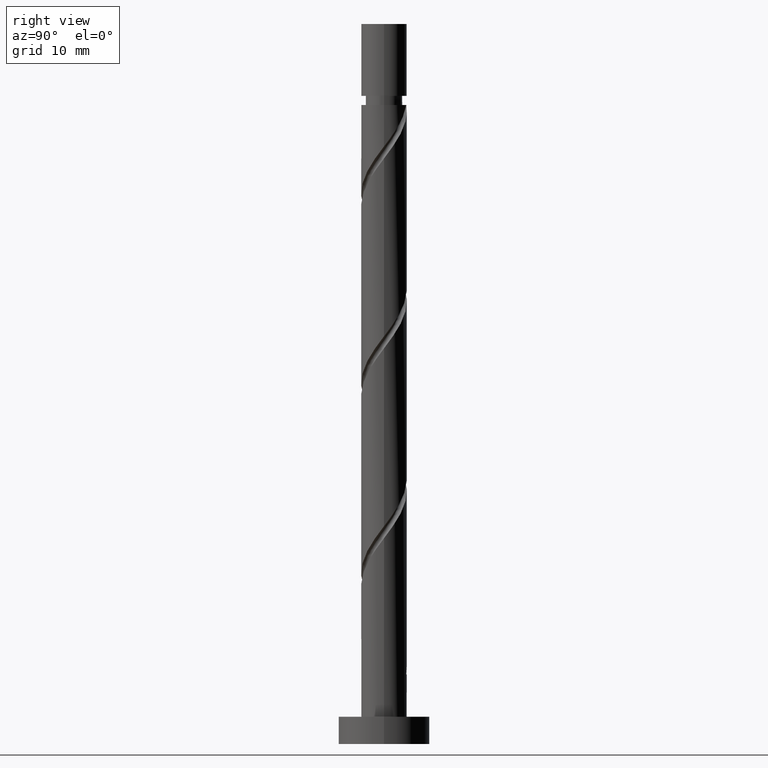
[diagram: clean part render]
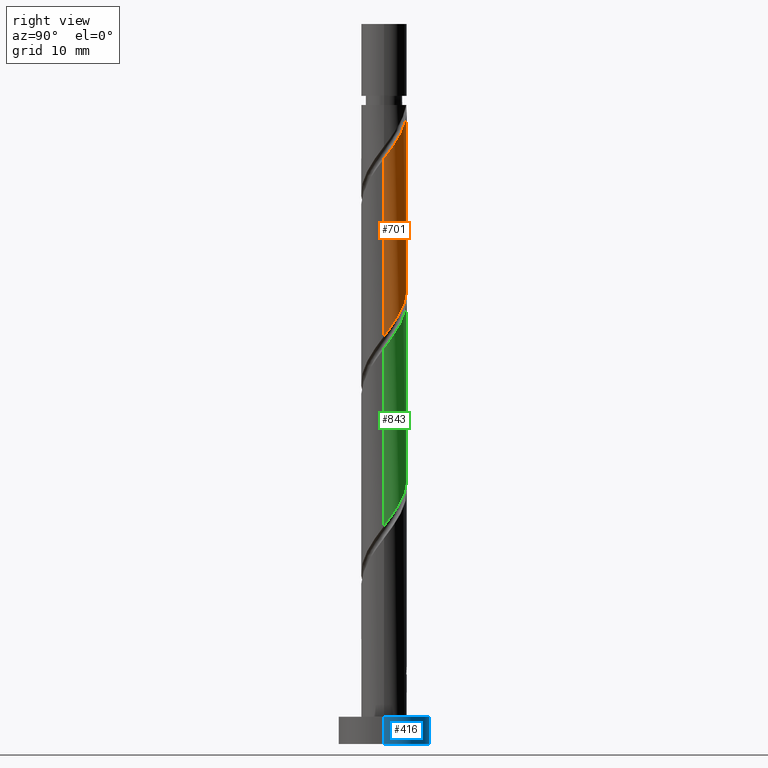
[diagram: same view with three faces highlighted in distinct colors, each labeled with its STEP entity id]
A machine part, right view with three faces highlighted in distinct colors.
Their STEP definitions:

[orange] entity #701 — the highlighted cylindrical surface (edge-blend (fillet) strip) has radius 2.5 mm, axis along (-0, -0, -1).
#4 = DIRECTION ( 'NONE',  ( -0.000000000000000000, -0.000000000000000000, -1.000000000000000000 ) ) ;
#34 = CARTESIAN_POINT ( 'NONE',  ( 2.450000000000004619, 0.4974937185533087614, 64.90624499621237931 ) ) ;
#45 = EDGE_CURVE ( 'NONE', #703, #78, #1336, .T. ) ;
#78 = VERTEX_POINT ( 'NONE', #1328 ) ;
#83 = CARTESIAN_POINT ( 'NONE',  ( -2.500000000000000444, 3.898206723633544695E-16, 55.15438077101598680 ) ) ;
#94 = DIRECTION ( 'NONE',  ( -0.000000000000000000, -0.000000000000000000, -1.000000000000000000 ) ) ;
#106 = ORIENTED_EDGE ( 'NONE', *, *, #45, .T. ) ;
#123 = DIRECTION ( 'NONE',  ( -0.000000000000000000, -0.000000000000000000, -1.000000000000000000 ) ) ;
#145 = CARTESIAN_POINT ( 'NONE',  ( 2.500000000000003997, -6.147172141114393691E-16, 64.24144255474212173 ) ) ;
#167 = CARTESIAN_POINT ( 'NONE',  ( 1.397840163920919254, 2.110172521261066247, 67.51041166287905071 ) ) ;
#192 = CARTESIAN_POINT ( 'NONE',  ( -2.176354451295367198, 1.230236279064652605, 53.44791166287905781 ) ) ;
#196 = VERTEX_POINT ( 'NONE', #1227 ) ;
#201 = CARTESIAN_POINT ( 'NONE',  ( 1.230236279064653049, 2.176354451295366310, 48.23957832954571501 ) ) ;
#227 = ORIENTED_EDGE ( 'NONE', *, *, #414, .F. ) ;
#244 = EDGE_CURVE ( 'NONE', #196, #78, #1095, .T. ) ;
#339 = CARTESIAN_POINT ( 'NONE',  ( 2.499999999999999556, 0.1424343436160815379, 44.92722519355658761 ) ) ;
#341 = EDGE_CURVE ( 'NONE', #196, #716, #1044, .T. ) ;
#414 = EDGE_CURVE ( 'NONE', #1063, #716, #984, .T. ) ;
#427 = CARTESIAN_POINT ( 'NONE',  ( 1.842554741020974163, 1.689672165344843657, 47.19791166287904360 ) ) ;
#443 = CARTESIAN_POINT ( 'NONE',  ( 0.8855355973484232424, 2.371204735821961673, 48.76041166287905781 ) ) ;
#446 = EDGE_LOOP ( 'NONE', ( #1290, #596, #227, #1271, #106 ) ) ;
#498 = FACE_OUTER_BOUND ( 'NONE', #446, .T. ) ;
#522 = VECTOR ( 'NONE', #4, 1000.000000000000000 ) ;
#556 = EDGE_CURVE ( 'NONE', #703, #1063, #607, .T. ) ;
#557 = CARTESIAN_POINT ( 'NONE',  ( 0.1094518397581949187, 2.528795264178037350, 49.80207832954572922 ) ) ;
#572 = CARTESIAN_POINT ( 'NONE',  ( -2.500000000000000000, 0.2512594538147992496, 54.82007619560815215 ) ) ;
#596 = ORIENTED_EDGE ( 'NONE', *, *, #341, .T. ) ;
#599 = CARTESIAN_POINT ( 'NONE',  ( -2.500000000000002665, 0.000000000000000000, 70.11457832954572211 ) ) ;
#607 = LINE ( 'NONE', #1092, #522 ) ;
#667 = CARTESIAN_POINT ( 'NONE',  ( -2.371204735821962561, 0.8855355973484230203, 53.96874499621238641 ) ) ;
#674 = CARTESIAN_POINT ( 'NONE',  ( -1.689672165344844101, 1.842554741020973719, 52.40624499621237931 ) ) ;
#683 = CARTESIAN_POINT ( 'NONE',  ( -0.6773458265033740489, 2.438849692923733326, 50.84374499621238641 ) ) ;
#701 = ADVANCED_FACE ( 'NONE', ( #498 ), #1318, .T. ) ;
#703 = VERTEX_POINT ( 'NONE', #599 ) ;
#716 = VERTEX_POINT ( 'NONE', #981 ) ;
#721 = DIRECTION ( 'NONE',  ( -1.000000000000000000, 0.000000000000000000, 0.000000000000000000 ) ) ;
#765 = CARTESIAN_POINT ( 'NONE',  ( 1.037592995212147873, 2.274511107092401119, 68.03124499621235088 ) ) ;
#806 = CARTESIAN_POINT ( 'NONE',  ( -1.037592995212145430, 2.274511107092398010, 51.36457832954571501 ) ) ;
#822 = CARTESIAN_POINT ( 'NONE',  ( 2.110172521261064027, 1.397840163920916146, 46.67707832954571501 ) ) ;
#865 = DIRECTION ( 'NONE',  ( -0.000000000000000000, -0.000000000000000000, -1.000000000000000000 ) ) ;
#935 = CARTESIAN_POINT ( 'NONE',  ( -1.397840163920916368, 2.110172521261063583, 51.88541166287905071 ) ) ;
#981 = CARTESIAN_POINT ( 'NONE',  ( 2.499999999999999112, -2.009075772949596157E-15, 44.73771410434930829 ) ) ;
#984 =( BOUNDED_CURVE ( )  B_SPLINE_CURVE ( 2, ( #83, #572, #1284, #667, #192, #1538, #674, #935, #806, #683, #1157, #557, #1516, #443, #201, #1429, #427, #822, #1165, #1037, #1522, #339, #1173 ),
 .UNSPECIFIED., .F., .T. ) 
 B_SPLINE_CURVE_WITH_KNOTS ( ( 3, 2, 2, 2, 2, 2, 2, 2, 2, 2, 2, 3 ),
 ( 0.4295322023138550827, 0.4375000000000000000, 0.4500000000000000111, 0.4625000000000000222, 0.4749999999999999778, 0.4874999999999999889, 0.5000000000000000000, 0.5124999999999999556, 0.5250000000000000222, 0.5374999999999999778, 0.5500000000000000444, 0.5545322023138552492 ),
 .UNSPECIFIED. ) 
 CURVE ( )  GEOMETRIC_REPRESENTATION_ITEM ( )  RATIONAL_B_SPLINE_CURVE ( ( 0.9039174447099268539, 0.9019565955404560409, 0.9090909090909043977, 0.8978984914501206838, 0.9090909090909043977, 0.8978984914501206838, 0.9090909090909043977, 0.8978984914501206838, 0.9090909090909043977, 0.8978984914501206838, 0.9090909090909043977, 0.8978984914501206838, 0.9090909090909043977, 0.8978984914501206838, 0.9090909090909043977, 0.8978984914501206838, 0.9090909090909043977, 0.8978984914501206838, 0.9090909090909043977, 0.8978984914501206838, 0.9090909090909043977, 0.9050328050005689295, 0.9039174447099267429 ) ) 
 REPRESENTATION_ITEM ( '' )  );
#1037 = CARTESIAN_POINT ( 'NONE',  ( 2.438849692923734658, 0.6773458265033740489, 45.63541166287905071 ) ) ;
#1044 = LINE ( 'NONE', #1529, #1563 ) ;
#1063 = VERTEX_POINT ( 'NONE', #1172 ) ;
#1086 = DIRECTION ( 'NONE',  ( -1.000000000000000000, 0.000000000000000000, 0.000000000000000000 ) ) ;
#1088 = CARTESIAN_POINT ( 'NONE',  ( 0.000000000000000000, 0.000000000000000000, 70.11457832954572211 ) ) ;
#1092 = CARTESIAN_POINT ( 'NONE',  ( -2.500000000000000000, 0.000000000000000000, 79.00000000000000000 ) ) ;
#1095 =( BOUNDED_CURVE ( )  B_SPLINE_CURVE ( 2, ( #145, #1373, #34, #1109, #1351, #1367, #1250, #167, #765, #1358, #1132, #1243, #1236 ),
 .UNSPECIFIED., .F., .T. ) 
 B_SPLINE_CURVE_WITH_KNOTS ( ( 3, 2, 2, 2, 2, 2, 3 ),
 ( 0.6795322023138552492, 0.6875000000000000000, 0.6999999999999999556, 0.7125000000000000222, 0.7249999999999999778, 0.7375000000000000444, 0.7500000000000000000 ),
 .UNSPECIFIED. ) 
 CURVE ( )  GEOMETRIC_REPRESENTATION_ITEM ( )  RATIONAL_B_SPLINE_CURVE ( ( 0.9039174447099327381, 0.9019565955404621471, 0.9090909090909106149, 0.8978984914501265679, 0.9090909090909106149, 0.8978984914501265679, 0.9090909090909106149, 0.8978984914501265679, 0.9090909090909106149, 0.8978984914501265679, 0.9090909090909106149, 0.8978984914501265679, 0.9090909090909106149 ) ) 
 REPRESENTATION_ITEM ( '' )  );
#1109 = CARTESIAN_POINT ( 'NONE',  ( 2.371204735821966114, 0.8855355973484234644, 65.42707832954573632 ) ) ;
#1132 = CARTESIAN_POINT ( 'NONE',  ( 0.2839469933725912165, 2.483822478550889556, 69.07291166287906492 ) ) ;
#1157 = CARTESIAN_POINT ( 'NONE',  ( -0.2839469933725897177, 2.483822478550885560, 50.32291166287906492 ) ) ;
#1165 = CARTESIAN_POINT ( 'NONE',  ( 2.274511107092398454, 1.037592995212144986, 46.15624499621238641 ) ) ;
#1172 = CARTESIAN_POINT ( 'NONE',  ( -2.500000000000000000, 3.898206723633544695E-16, 55.15438077101598680 ) ) ;
#1173 = CARTESIAN_POINT ( 'NONE',  ( 2.499999999999999112, -2.009075772949596157E-15, 44.73771410434930829 ) ) ;
#1181 = AXIS2_PLACEMENT_3D ( 'NONE', #1088, #123, #721 ) ;
#1207 = AXIS2_PLACEMENT_3D ( 'NONE', #1565, #865, #1086 ) ;
#1227 = CARTESIAN_POINT ( 'NONE',  ( 2.500000000000003997, -6.147172141114394677E-16, 64.24144255474212173 ) ) ;
#1236 = CARTESIAN_POINT ( 'NONE',  ( -0.4974937185533084283, 2.450000000000002842, 70.11457832954570790 ) ) ;
#1243 = CARTESIAN_POINT ( 'NONE',  ( -0.1094518397581940028, 2.528795264178042679, 69.59374499621240773 ) ) ;
#1250 = CARTESIAN_POINT ( 'NONE',  ( 1.689672165344847432, 1.842554741020975273, 66.98957832954572211 ) ) ;
#1271 = ORIENTED_EDGE ( 'NONE', *, *, #556, .F. ) ;
#1284 = CARTESIAN_POINT ( 'NONE',  ( -2.450000000000000622, 0.4974937185533089279, 54.48957832954571501 ) ) ;
#1290 = ORIENTED_EDGE ( 'NONE', *, *, #244, .F. ) ;
#1318 = CYLINDRICAL_SURFACE ( 'NONE', #1207, 2.500000000000000000 ) ;
#1328 = CARTESIAN_POINT ( 'NONE',  ( -0.4974937185533084283, 2.450000000000002842, 70.11457832954570790 ) ) ;
#1336 = CIRCLE ( 'NONE', #1181, 2.500000000000003109 ) ;
#1351 = CARTESIAN_POINT ( 'NONE',  ( 2.176354451295371195, 1.230236279064653715, 65.94791166287905071 ) ) ;
#1358 = CARTESIAN_POINT ( 'NONE',  ( 0.6773458265033764913, 2.438849692923736878, 68.55207832954573632 ) ) ;
#1367 = CARTESIAN_POINT ( 'NONE',  ( 1.981504166768775610, 1.574936960780884743, 66.46874499621239352 ) ) ;
#1373 = CARTESIAN_POINT ( 'NONE',  ( 2.500000000000004441, 0.2512594538148026913, 64.57574713014997769 ) ) ;
#1429 = CARTESIAN_POINT ( 'NONE',  ( 1.574936960780882966, 1.981504166768771391, 47.71874499621239352 ) ) ;
#1516 = CARTESIAN_POINT ( 'NONE',  ( 0.4974937185533094275, 2.450000000000000622, 49.28124499621240773 ) ) ;
#1522 = CARTESIAN_POINT ( 'NONE',  ( 2.483822478550886004, 0.2839469933725892736, 45.11457832954571501 ) ) ;
#1529 = CARTESIAN_POINT ( 'NONE',  ( 2.500000000000000000, 3.061616997868383141E-16, 79.00000000000000000 ) ) ;
#1538 = CARTESIAN_POINT ( 'NONE',  ( -1.981504166768771391, 1.574936960780882522, 52.92707832954572211 ) ) ;
#1563 = VECTOR ( 'NONE', #94, 1000.000000000000000 ) ;
#1565 = CARTESIAN_POINT ( 'NONE',  ( 0.000000000000000000, 0.000000000000000000, 79.00000000000000000 ) ) ;

[blue] entity #416 — the highlighted cylindrical surface (partial cylindrical patch) has radius 5 mm, axis along (-0, -0, -1).
#76 = CYLINDRICAL_SURFACE ( 'NONE', #702, 5.000000000000000000 ) ;
#223 = VECTOR ( 'NONE', #734, 1000.000000000000000 ) ;
#274 = EDGE_CURVE ( 'NONE', #1415, #1305, #445, .T. ) ;
#306 = ORIENTED_EDGE ( 'NONE', *, *, #1568, .T. ) ;
#363 = CARTESIAN_POINT ( 'NONE',  ( -5.000000000000000000, 0.000000000000000000, 3.000000000000000000 ) ) ;
#416 = ADVANCED_FACE ( 'NONE', ( #911 ), #76, .T. ) ;
#417 = CARTESIAN_POINT ( 'NONE',  ( 5.000000000000000000, 6.123233995736766282E-16, 3.000000000000000000 ) ) ;
#430 = CARTESIAN_POINT ( 'NONE',  ( 5.000000000000000000, 6.123233995736766282E-16, 0.000000000000000000 ) ) ;
#445 = CIRCLE ( 'NONE', #1410, 5.000000000000000000 ) ;
#451 = DIRECTION ( 'NONE',  ( -1.000000000000000000, 0.000000000000000000, 0.000000000000000000 ) ) ;
#461 = DIRECTION ( 'NONE',  ( 0.000000000000000000, 0.000000000000000000, 1.000000000000000000 ) ) ;
#492 = DIRECTION ( 'NONE',  ( 1.000000000000000000, 0.000000000000000000, 0.000000000000000000 ) ) ;
#505 = CARTESIAN_POINT ( 'NONE',  ( -5.000000000000000000, 0.000000000000000000, 0.000000000000000000 ) ) ;
#581 = ORIENTED_EDGE ( 'NONE', *, *, #274, .T. ) ;
#584 = DIRECTION ( 'NONE',  ( -0.000000000000000000, -0.000000000000000000, -1.000000000000000000 ) ) ;
#602 = VERTEX_POINT ( 'NONE', #1068 ) ;
#623 = EDGE_CURVE ( 'NONE', #602, #810, #1228, .T. ) ;
#673 = EDGE_CURVE ( 'NONE', #810, #1305, #1466, .T. ) ;
#702 = AXIS2_PLACEMENT_3D ( 'NONE', #1397, #584, #451 ) ;
#704 = VECTOR ( 'NONE', #1497, 1000.000000000000000 ) ;
#719 = CARTESIAN_POINT ( 'NONE',  ( 0.000000000000000000, 0.000000000000000000, 3.000000000000000000 ) ) ;
#734 = DIRECTION ( 'NONE',  ( -0.000000000000000000, -0.000000000000000000, -1.000000000000000000 ) ) ;
#755 = CARTESIAN_POINT ( 'NONE',  ( -5.000000000000000000, 0.000000000000000000, 3.000000000000000000 ) ) ;
#810 = VERTEX_POINT ( 'NONE', #755 ) ;
#903 = AXIS2_PLACEMENT_3D ( 'NONE', #719, #1326, #492 ) ;
#911 = FACE_OUTER_BOUND ( 'NONE', #1575, .T. ) ;
#956 = ORIENTED_EDGE ( 'NONE', *, *, #623, .F. ) ;
#1030 = DIRECTION ( 'NONE',  ( 1.000000000000000000, 0.000000000000000000, 0.000000000000000000 ) ) ;
#1068 = CARTESIAN_POINT ( 'NONE',  ( 5.000000000000000000, 6.123233995736766282E-16, 3.000000000000000000 ) ) ;
#1117 = CARTESIAN_POINT ( 'NONE',  ( 0.000000000000000000, 0.000000000000000000, 0.000000000000000000 ) ) ;
#1171 = LINE ( 'NONE', #417, #704 ) ;
#1183 = ORIENTED_EDGE ( 'NONE', *, *, #673, .F. ) ;
#1228 = CIRCLE ( 'NONE', #903, 5.000000000000000000 ) ;
#1305 = VERTEX_POINT ( 'NONE', #505 ) ;
#1326 = DIRECTION ( 'NONE',  ( 0.000000000000000000, 0.000000000000000000, 1.000000000000000000 ) ) ;
#1397 = CARTESIAN_POINT ( 'NONE',  ( 0.000000000000000000, 0.000000000000000000, 3.000000000000000000 ) ) ;
#1410 = AXIS2_PLACEMENT_3D ( 'NONE', #1117, #461, #1030 ) ;
#1415 = VERTEX_POINT ( 'NONE', #430 ) ;
#1466 = LINE ( 'NONE', #363, #223 ) ;
#1497 = DIRECTION ( 'NONE',  ( -0.000000000000000000, -0.000000000000000000, -1.000000000000000000 ) ) ;
#1568 = EDGE_CURVE ( 'NONE', #602, #1415, #1171, .T. ) ;
#1575 = EDGE_LOOP ( 'NONE', ( #956, #306, #581, #1183 ) ) ;

[green] entity #843 — the highlighted cylindrical surface (edge-blend (fillet) strip) has radius 2.5 mm, axis along (-0, -0, -1).
#110 = CARTESIAN_POINT ( 'NONE',  ( -2.176354451295367198, 1.230236279064652605, 32.61457832954572211 ) ) ;
#142 = FACE_OUTER_BOUND ( 'NONE', #533, .T. ) ;
#150 = DIRECTION ( 'NONE',  ( -0.000000000000000000, -0.000000000000000000, -1.000000000000000000 ) ) ;
#153 = CARTESIAN_POINT ( 'NONE',  ( 0.6773458265033764913, 2.438849692923736878, 47.71874499621240773 ) ) ;
#160 = EDGE_CURVE ( 'NONE', #1501, #729, #235, .T. ) ;
#168 = CARTESIAN_POINT ( 'NONE',  ( 1.037592995212147873, 2.274511107092401119, 47.19791166287904360 ) ) ;
#176 = CARTESIAN_POINT ( 'NONE',  ( 0.2839469933725912165, 2.483822478550889556, 48.23957832954571501 ) ) ;
#179 = CARTESIAN_POINT ( 'NONE',  ( 2.500000000000003997, 6.746896252442628833E-16, 43.40810922140878603 ) ) ;
#185 = CARTESIAN_POINT ( 'NONE',  ( -2.500000000000003997, 2.848689528809109284E-16, 53.82477588807545743 ) ) ;
#209 = VERTEX_POINT ( 'NONE', #1476 ) ;
#232 = CARTESIAN_POINT ( 'NONE',  ( -2.371204735821962561, 0.8855355973484230203, 33.13541166287904360 ) ) ;
#235 = LINE ( 'NONE', #373, #807 ) ;
#237 = EDGE_CURVE ( 'NONE', #465, #209, #386, .T. ) ;
#267 = CARTESIAN_POINT ( 'NONE',  ( 2.450000000000004619, 0.4974937185533087614, 44.07291166287903650 ) ) ;
#271 = CARTESIAN_POINT ( 'NONE',  ( 1.981504166768775610, 1.574936960780884743, 45.63541166287907913 ) ) ;
#276 = CARTESIAN_POINT ( 'NONE',  ( 0.000000000000000000, 0.000000000000000000, 79.00000000000000000 ) ) ;
#279 = CARTESIAN_POINT ( 'NONE',  ( 1.689672165344847432, 1.842554741020975273, 46.15624499621237931 ) ) ;
#325 = ORIENTED_EDGE ( 'NONE', *, *, #902, .F. ) ;
#330 = CARTESIAN_POINT ( 'NONE',  ( -2.450000000000000622, 0.4974937185533089279, 33.65624499621238641 ) ) ;
#355 = CARTESIAN_POINT ( 'NONE',  ( 2.438849692923734658, 0.6773458265033740489, 24.80207832954572211 ) ) ;
#358 = DIRECTION ( 'NONE',  ( -0.000000000000000000, -0.000000000000000000, -1.000000000000000000 ) ) ;
#361 = CARTESIAN_POINT ( 'NONE',  ( -1.689672165344844101, 1.842554741020973719, 31.57291166287905071 ) ) ;
#373 = CARTESIAN_POINT ( 'NONE',  ( 2.500000000000000000, 3.061616997868383141E-16, 79.00000000000000000 ) ) ;
#386 = LINE ( 'NONE', #650, #626 ) ;
#387 = CARTESIAN_POINT ( 'NONE',  ( -2.438849692923736878, 0.6773458265033759362, 52.92707832954572211 ) ) ;
#459 = CARTESIAN_POINT ( 'NONE',  ( -2.499999999999999556, 1.664234408935859595E-15, 34.32104743768264399 ) ) ;
#465 = VERTEX_POINT ( 'NONE', #814 ) ;
#478 = CARTESIAN_POINT ( 'NONE',  ( 1.230236279064653049, 2.176354451295366310, 27.40624499621238286 ) ) ;
#510 = CARTESIAN_POINT ( 'NONE',  ( 2.176354451295371195, 1.230236279064653715, 45.11457832954571501 ) ) ;
#525 = CARTESIAN_POINT ( 'NONE',  ( -1.842554741020975939, 1.689672165344847210, 51.36457832954570790 ) ) ;
#531 = CARTESIAN_POINT ( 'NONE',  ( 1.397840163920919254, 2.110172521261066247, 46.67707832954573632 ) ) ;
#533 = EDGE_LOOP ( 'NONE', ( #325, #1425, #1151, #1313 ) ) ;
#598 = CARTESIAN_POINT ( 'NONE',  ( -1.981504166768771391, 1.574936960780882522, 32.09374499621239352 ) ) ;
#626 = VECTOR ( 'NONE', #772, 1000.000000000000000 ) ;
#627 = CARTESIAN_POINT ( 'NONE',  ( 2.500000000000004441, 0.2512594538148009149, 43.74241379681662067 ) ) ;
#650 = CARTESIAN_POINT ( 'NONE',  ( -2.500000000000000000, 0.000000000000000000, 79.00000000000000000 ) ) ;
#651 = CARTESIAN_POINT ( 'NONE',  ( -0.1094518397581940028, 2.528795264178042679, 48.76041166287907203 ) ) ;
#709 = CARTESIAN_POINT ( 'NONE',  ( 2.500000000000000000, 0.1424343436160781240, 24.09389186022325902 ) ) ;
#725 = CARTESIAN_POINT ( 'NONE',  ( 2.110172521261064027, 1.397840163920916146, 25.84374499621238641 ) ) ;
#729 = VERTEX_POINT ( 'NONE', #1077 ) ;
#747 = CARTESIAN_POINT ( 'NONE',  ( 2.500000000000003997, 6.746896252442628833E-16, 43.40810922140878603 ) ) ;
#772 = DIRECTION ( 'NONE',  ( -0.000000000000000000, -0.000000000000000000, -1.000000000000000000 ) ) ;
#807 = VECTOR ( 'NONE', #358, 1000.000000000000000 ) ;
#814 = CARTESIAN_POINT ( 'NONE',  ( -2.500000000000003997, 2.848689528809109284E-16, 53.82477588807545743 ) ) ;
#820 = CARTESIAN_POINT ( 'NONE',  ( 0.4974937185533094275, 2.450000000000000622, 28.44791166287905426 ) ) ;
#829 = CARTESIAN_POINT ( 'NONE',  ( -1.397840163920916368, 2.110172521261063583, 31.05207832954572211 ) ) ;
#843 = ADVANCED_FACE ( 'NONE', ( #142 ), #880, .T. ) ;
#846 = CARTESIAN_POINT ( 'NONE',  ( 2.483822478550886004, 0.2839469933725892736, 24.28124499621238996 ) ) ;
#852 = CARTESIAN_POINT ( 'NONE',  ( -0.6773458265033740489, 2.438849692923733326, 30.01041166287905426 ) ) ;
#880 = CYLINDRICAL_SURFACE ( 'NONE', #1256, 2.500000000000000000 ) ;
#883 = CARTESIAN_POINT ( 'NONE',  ( -2.274511107092401119, 1.037592995212147429, 52.40624499621239352 ) ) ;
#902 = EDGE_CURVE ( 'NONE', #1501, #465, #1123, .T. ) ;
#959 = CARTESIAN_POINT ( 'NONE',  ( 1.574936960780882966, 1.981504166768771391, 26.88541166287905071 ) ) ;
#965 = CARTESIAN_POINT ( 'NONE',  ( -1.037592995212145430, 2.274511107092398010, 30.53124499621238641 ) ) ;
#997 = CARTESIAN_POINT ( 'NONE',  ( -1.574936960780884743, 1.981504166768775166, 50.84374499621240773 ) ) ;
#1007 = CARTESIAN_POINT ( 'NONE',  ( -1.230236279064653937, 2.176354451295370751, 50.32291166287905071 ) ) ;
#1072 =( BOUNDED_CURVE ( )  B_SPLINE_CURVE ( 2, ( #459, #1427, #330, #232, #110, #598, #361, #829, #965, #852, #1562, #1307, #820, #1298, #478, #959, #1443, #725, #1203, #355, #846, #709, #1188 ),
 .UNSPECIFIED., .F., .T. ) 
 B_SPLINE_CURVE_WITH_KNOTS ( ( 3, 2, 2, 2, 2, 2, 2, 2, 2, 2, 2, 3 ),
 ( 0.6795322023138552492, 0.6875000000000000000, 0.6999999999999999556, 0.7125000000000000222, 0.7249999999999999778, 0.7375000000000000444, 0.7500000000000000000, 0.7624999999999999556, 0.7750000000000000222, 0.7874999999999999778, 0.8000000000000000444, 0.8045322023138553602 ),
 .UNSPECIFIED. ) 
 CURVE ( )  GEOMETRIC_REPRESENTATION_ITEM ( )  RATIONAL_B_SPLINE_CURVE ( ( 0.9039174447099267429, 0.9019565955404561519, 0.9090909090909043977, 0.8978984914501206838, 0.9090909090909043977, 0.8978984914501206838, 0.9090909090909043977, 0.8978984914501206838, 0.9090909090909043977, 0.8978984914501206838, 0.9090909090909043977, 0.8978984914501206838, 0.9090909090909043977, 0.8978984914501206838, 0.9090909090909043977, 0.8978984914501206838, 0.9090909090909043977, 0.8978984914501206838, 0.9090909090909043977, 0.8978984914501206838, 0.9090909090909043977, 0.9050328050005687075, 0.9039174447099266319 ) ) 
 REPRESENTATION_ITEM ( '' )  );
#1077 = CARTESIAN_POINT ( 'NONE',  ( 2.499999999999999112, -2.009075772949596157E-15, 23.90438077101597969 ) ) ;
#1118 = CARTESIAN_POINT ( 'NONE',  ( -2.110172521261066692, 1.397840163920918810, 51.88541166287904360 ) ) ;
#1123 =( BOUNDED_CURVE ( )  B_SPLINE_CURVE ( 2, ( #747, #627, #267, #1356, #510, #271, #279, #531, #168, #153, #176, #651, #1133, #1374, #1007, #997, #525, #1118, #883, #387, #1506, #1268, #185 ),
 .UNSPECIFIED., .F., .T. ) 
 B_SPLINE_CURVE_WITH_KNOTS ( ( 3, 2, 2, 2, 2, 2, 2, 2, 2, 2, 2, 3 ),
 ( 0.4295322023138551937, 0.4375000000000000000, 0.4499999999999999556, 0.4625000000000000222, 0.4749999999999999778, 0.4875000000000000444, 0.5000000000000000000, 0.5124999999999999556, 0.5250000000000000222, 0.5374999999999999778, 0.5500000000000000444, 0.5545322023138552492 ),
 .UNSPECIFIED. ) 
 CURVE ( )  GEOMETRIC_REPRESENTATION_ITEM ( )  RATIONAL_B_SPLINE_CURVE ( ( 0.9039174447099327381, 0.9019565955404621471, 0.9090909090909106149, 0.8978984914501265679, 0.9090909090909106149, 0.8978984914501265679, 0.9090909090909106149, 0.8978984914501265679, 0.9090909090909106149, 0.8978984914501265679, 0.9090909090909106149, 0.8978984914501265679, 0.9090909090909106149, 0.8978984914501265679, 0.9090909090909106149, 0.8978984914501265679, 0.9090909090909106149, 0.8978984914501265679, 0.9090909090909106149, 0.8978984914501265679, 0.9090909090909106149, 0.9050328050005749247, 0.9039174447099327381 ) ) 
 REPRESENTATION_ITEM ( '' )  );
#1133 = CARTESIAN_POINT ( 'NONE',  ( -0.4974937185533085393, 2.450000000000004619, 49.28124499621237931 ) ) ;
#1151 = ORIENTED_EDGE ( 'NONE', *, *, #1164, .F. ) ;
#1164 = EDGE_CURVE ( 'NONE', #209, #729, #1072, .T. ) ;
#1188 = CARTESIAN_POINT ( 'NONE',  ( 2.499999999999999112, -2.009075772949596157E-15, 23.90438077101597969 ) ) ;
#1203 = CARTESIAN_POINT ( 'NONE',  ( 2.274511107092398454, 1.037592995212144986, 25.32291166287904360 ) ) ;
#1241 = DIRECTION ( 'NONE',  ( -1.000000000000000000, 0.000000000000000000, 0.000000000000000000 ) ) ;
#1256 = AXIS2_PLACEMENT_3D ( 'NONE', #276, #150, #1241 ) ;
#1268 = CARTESIAN_POINT ( 'NONE',  ( -2.500000000000003553, 0.1424343436160828147, 53.63526479886819942 ) ) ;
#1298 = CARTESIAN_POINT ( 'NONE',  ( 0.8855355973484232424, 2.371204735821961673, 27.92707832954571145 ) ) ;
#1307 = CARTESIAN_POINT ( 'NONE',  ( 0.1094518397581949187, 2.528795264178037350, 28.96874499621238641 ) ) ;
#1313 = ORIENTED_EDGE ( 'NONE', *, *, #237, .F. ) ;
#1356 = CARTESIAN_POINT ( 'NONE',  ( 2.371204735821966114, 0.8855355973484234644, 44.59374499621240062 ) ) ;
#1374 = CARTESIAN_POINT ( 'NONE',  ( -0.8855355973484241305, 2.371204735821966114, 49.80207832954573632 ) ) ;
#1425 = ORIENTED_EDGE ( 'NONE', *, *, #160, .T. ) ;
#1427 = CARTESIAN_POINT ( 'NONE',  ( -2.499999999999998668, 0.2512594538148032464, 33.98674286227480934 ) ) ;
#1443 = CARTESIAN_POINT ( 'NONE',  ( 1.842554741020974163, 1.689672165344843657, 26.36457832954571856 ) ) ;
#1476 = CARTESIAN_POINT ( 'NONE',  ( -2.499999999999999556, 1.664234408935859595E-15, 34.32104743768264399 ) ) ;
#1501 = VERTEX_POINT ( 'NONE', #179 ) ;
#1506 = CARTESIAN_POINT ( 'NONE',  ( -2.483822478550889112, 0.2839469933725906614, 53.44791166287906492 ) ) ;
#1562 = CARTESIAN_POINT ( 'NONE',  ( -0.2839469933725897177, 2.483822478550885560, 29.48957832954572211 ) ) ;